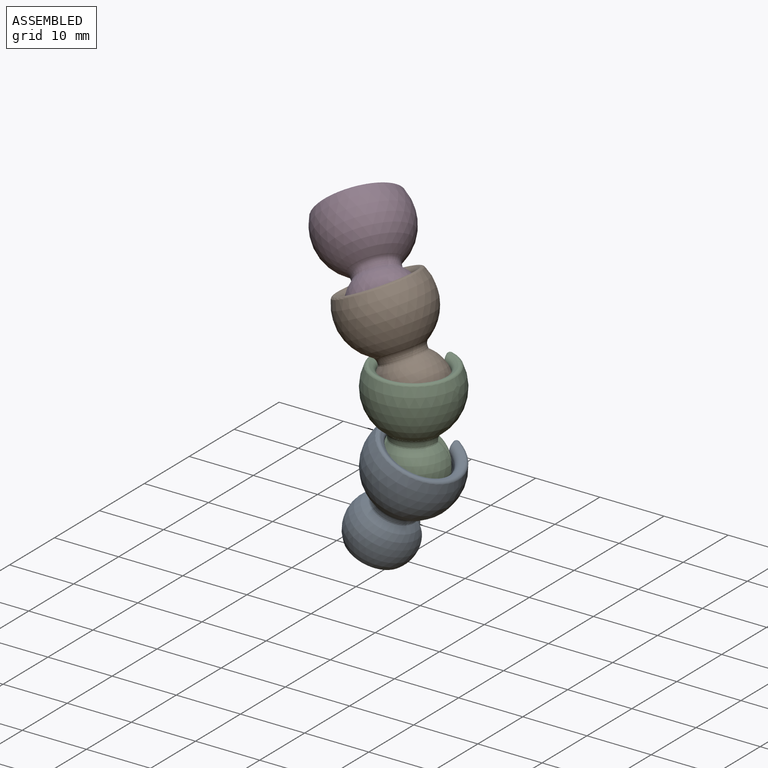
[diagram: assembled view]
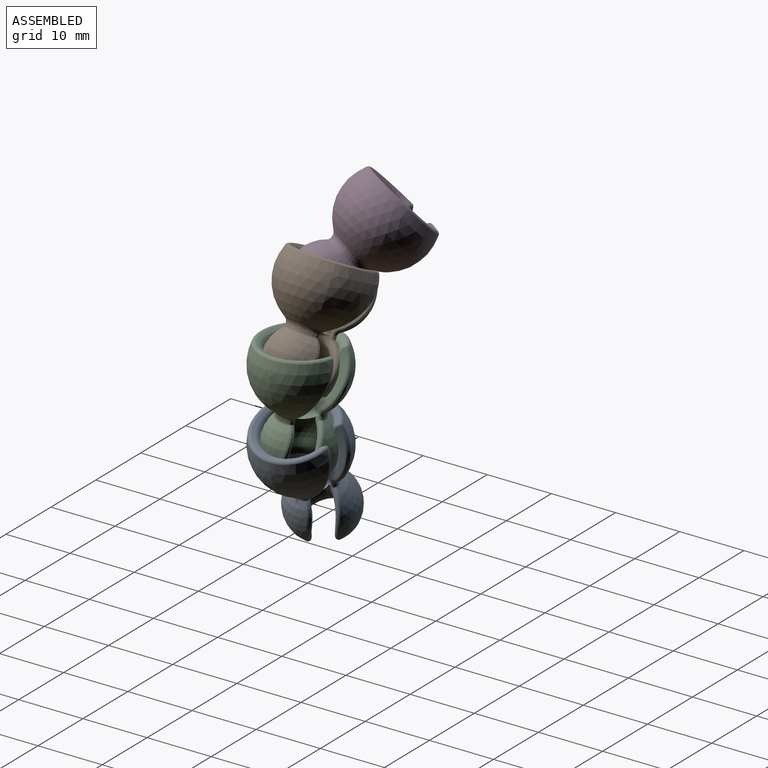
[diagram: assembled view, second angle]
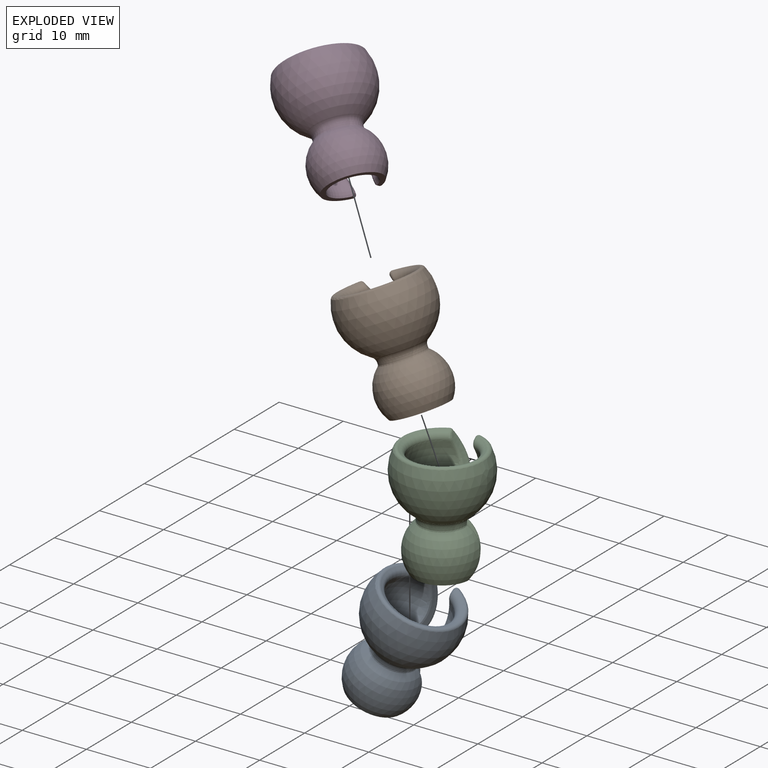
[diagram: exploded view]
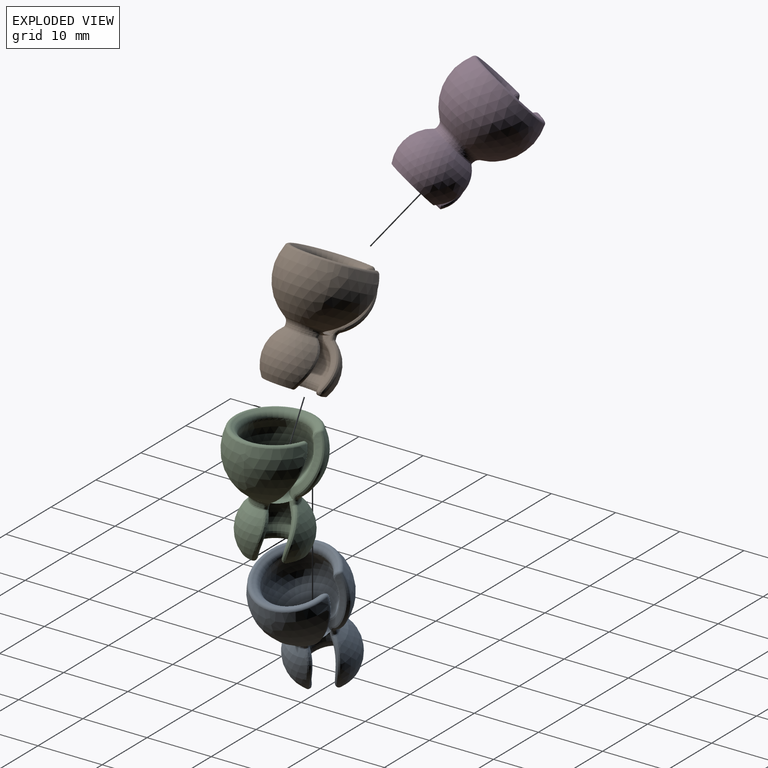
[diagram: exploded view, second angle]
ASSEMBLY  parts=4 mates=3
PART A: 49 faces, bbox 14x14.5x19.5 mm
  f0: sphere r=5.2mm, area 195.9mm2, adj f12,f15,f30,f46
  f1: cylinder r=1.8mm len=3.56mm, axis (0,0,-1), area 4.1mm2, adj f10,f11,f12,f13
  f2: sphere r=3.89mm, area 88.4mm2, adj f11,f14,f18,f23
  f3: plane 8.76x8.72mm, normal (0,0,-1), area 16.5mm2, adj f4,f14,f22,f25,f29,f32
  f4: sphere r=5.3mm, area 195.4mm2, adj f3,f9,f25,f32
  f5: cylinder r=3.4mm len=6.8mm, axis (0,0,-1), area 5.1mm2, adj f8,f9,f31,f38
  f6: sphere r=7mm, area 384.1mm2, adj f8,f37,f41,f42
  f7: cone r=4.55mm half-angle=60.9deg, axis (0,0,1), area 11mm2, adj f15,f36,f41,f44
  f8: torus R=4.4mm, axis (0,0,1), area 17.1mm2, adj f5,f6,f34,f40
  f9: torus R=3.7mm, axis (0,0,-1), area 4.2mm2, adj f4,f5,f28,f35
  f10: bspline ~5.16x1.23mm, area 1.2mm2, adj f1,f19,f48
  f11: torus R=3.8mm, axis (0,0,-1), area 15.4mm2, adj f1,f2,f16,f17,f19,f21
  f12: torus R=3.8mm, axis (0,0,1), area 19mm2, adj f0,f1,f24,f27,f47,f48
  f13: bspline ~4.26x1.31mm, area 1.2mm2, adj f1,f16,f24
  f14: torus R=5.43mm, axis (0,0,1), area 27.8mm2, adj f2,f3,f20,f22,f26,f29
  f15: torus R=5.83mm, axis (0,0,-1), area 38.3mm2, adj f0,f7,f33,f45
  f16: bspline ~1.43x0.88mm, area 0.1mm2, adj f11,f13,f17
  f17: bspline ~1.21x1.03mm, area 0.3mm2, adj f11,f16,f18
  f18: bspline ~5.68x2.19mm, area 3mm2, adj f2,f17,f20
  f19: bspline ~1.45x1.03mm, area 0.2mm2, adj f10,f11,f21
  f20: bspline ~2.26x0.97mm, area 0.7mm2, adj f14,f18,f22
  f21: bspline ~1.41x1.26mm, area 0.4mm2, adj f11,f19,f23
  f22: bspline ~3.79x1.85mm, area 0.3mm2, adj f3,f14,f20,f25
  f23: bspline ~5.95x3.15mm, area 3.4mm2, adj f2,f21,f26
  f24: bspline ~1.45x1.31mm, area 0.2mm2, adj f12,f13,f27
  f25: bspline ~8.62x3.09mm, area 7.8mm2, adj f3,f4,f22,f28
  f26: bspline ~1.95x0.79mm, area 0.6mm2, adj f14,f23,f29
  f27: bspline ~1.49x1.27mm, area 0.6mm2, adj f12,f24,f30
  f28: bspline ~1.15x1mm, area 0.4mm2, adj f9,f25,f31
  f29: bspline ~3.82x2.23mm, area 0.6mm2, adj f3,f14,f26,f32
  f30: bspline ~7.85x5.16mm, area 5.5mm2, adj f0,f27,f33
  f31: bspline ~1.82x1.47mm, area 0.4mm2, adj f5,f28,f34
  f32: bspline ~8.09x4.28mm, area 7.8mm2, adj f3,f4,f29,f35
  f33: bspline ~1.53x0.92mm, area 0.8mm2, adj f15,f30,f36
  f34: bspline ~1.67x1.65mm, area 1.4mm2, adj f8,f31,f37
  f35: bspline ~1.15x0.95mm, area 0.5mm2, adj f9,f32,f38
  f36: bspline ~2.86x1.91mm, area 0.3mm2, adj f7,f33,f39
  f37: bspline ~10.04x6.34mm, area 9.5mm2, adj f6,f34,f39
  f38: bspline ~1.38x1.34mm, area 0.4mm2, adj f5,f35,f40
  f39: sphere r=0.5mm, area 0.7mm2, adj f36,f37,f41
  f40: bspline ~1.78x1.47mm, area 1.3mm2, adj f8,f38,f42
  f41: torus R=5.91mm, axis (0,0,-1), area 27.6mm2, adj f6,f7,f39,f43
  f42: bspline ~10.08x3.91mm, area 10.1mm2, adj f6,f40,f43
  f43: sphere r=0.5mm, area 0.4mm2, adj f41,f42,f44
  f44: bspline ~3.46x2.21mm, area 0.2mm2, adj f7,f43,f45
  f45: bspline ~1.37x0.8mm, area 0.7mm2, adj f15,f44,f46
  f46: bspline ~8.27x3.78mm, area 4.6mm2, adj f0,f45,f47
  f47: bspline ~1.46x1.31mm, area 0.4mm2, adj f12,f46,f48
  f48: bspline ~1.43x0.97mm, area 0.1mm2, adj f10,f12,f47
PART B: same geometry as A
PART C: same geometry as A
PART D: same geometry as A
PLACE A rot(axis=(0,1,0),25.2deg) t=(-6.05,0,-9.85)mm
PLACE B rot(axis=(-0.25,-0.55,0.8),43.1deg) t=(1.29,-0.15,11.49)mm
PLACE C at identity
PLACE D rot(axis=(-0.55,-0.17,0.82),88.3deg) t=(-3,-0.7,22.27)mm
MATE ball D.f41 <-> B.f15  axis (-0.6,0.42,0.68) through (-4.81,0.56,24.3)mm
MATE ball B.f41 <-> C.f15  axis (-0.43,0.05,0.9) through (0,0,14.2)mm
MATE ball C.f41 <-> A.f15  axis (0,0,1) through (0,0,3)mm
